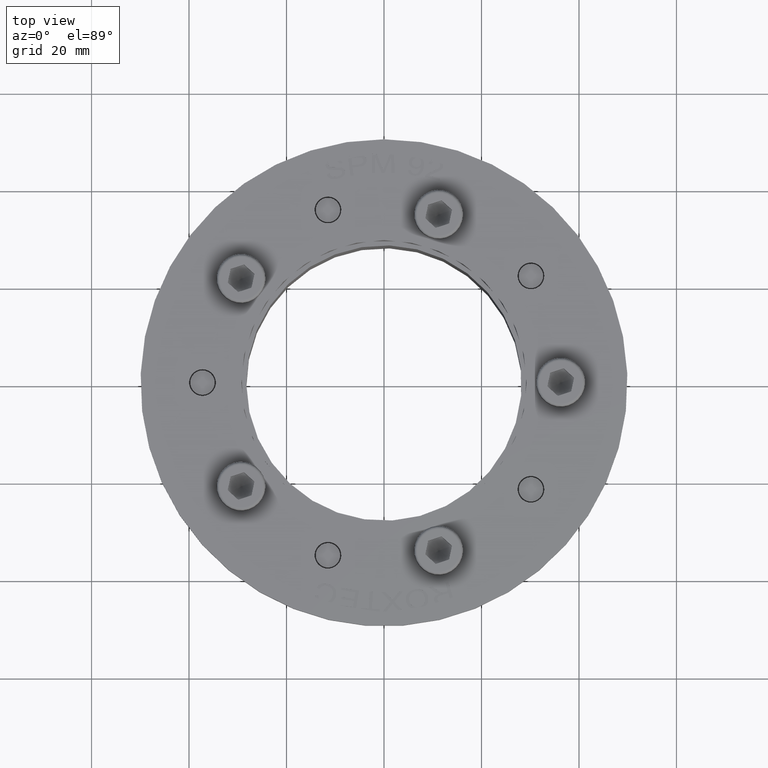
[diagram: clean part render]
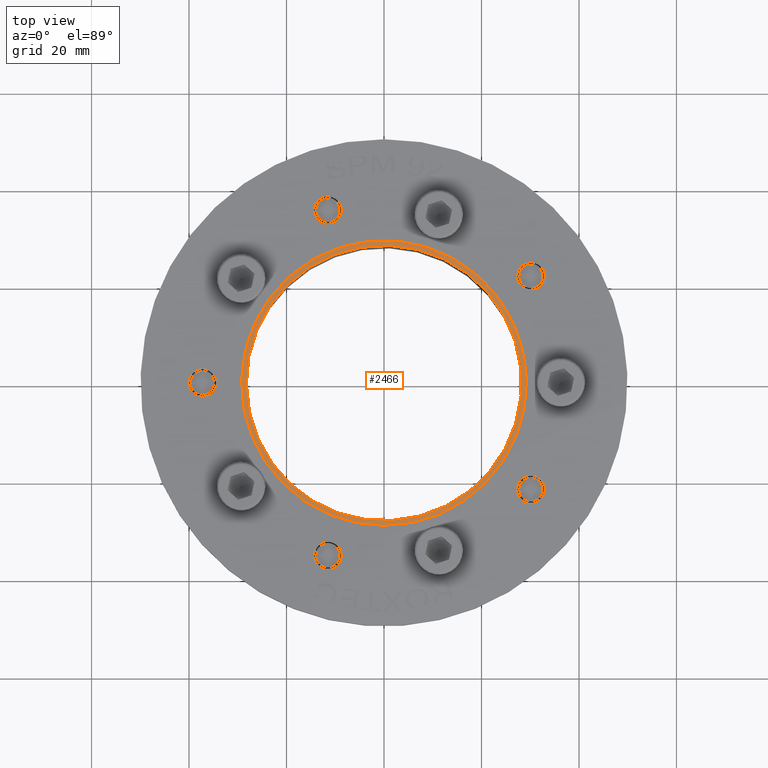
[diagram: same view with one face highlighted and labeled with its STEP entity id]
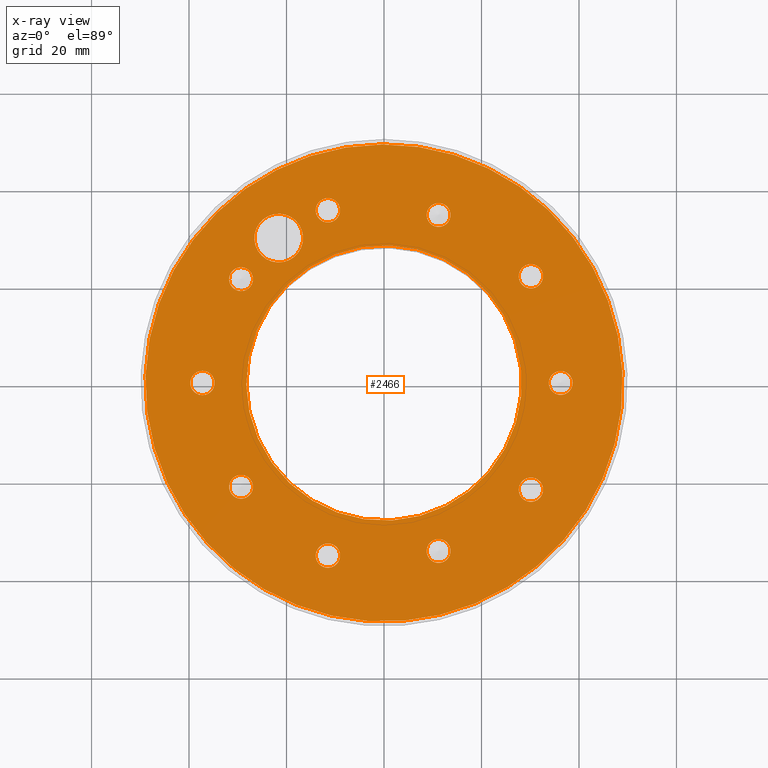
[diagram: x-ray of the same camera — body ghosted, the highlighted face saturated]
A machine part, top view. The second image highlights one B-rep face of the part: STEP entity #2466.
The next image is the same camera in x-ray: the body ghosted, the highlighted face saturated — about 0% of this face is hidden behind the body in this view.
In plain terms, the highlighted planar face has unit normal (0, 0, -1).
Its self-contained STEP definition (entity closure, byte-faithful):
#1428=CARTESIAN_POINT('',(-6.356374543279335,34.951326973846896,35.0));
#1429=VERTEX_POINT('',#1428);
#1430=CARTESIAN_POINT('',(-11.356374543279335,34.951326973846896,35.0));
#1431=DIRECTION('',(0.0,0.0,-1.0));
#1432=DIRECTION('',(-1.0,0.0,0.0));
#1433=AXIS2_PLACEMENT_3D('',#1430,#1431,#1432);
#1434=CIRCLE('',#1433,4.999999999999999);
#1435=EDGE_CURVE('',#1429,#1429,#1434,.T.);
#2113=CARTESIAN_POINT('',(36.199397717931852,9.133241749728908,35.0));
#2114=VERTEX_POINT('',#2113);
#2115=CARTESIAN_POINT('',(35.426855231994487,11.510883040466792,35.0));
#2116=DIRECTION('',(0.0,0.0,-1.0));
#2117=DIRECTION('',(-0.309016994374947,0.951056516295154,0.0));
#2118=AXIS2_PLACEMENT_3D('',#2115,#2116,#2117);
#2119=CIRCLE('',#2118,2.5);
#2120=EDGE_CURVE('',#2114,#2114,#2119,.T.);
#2150=CARTESIAN_POINT('',(19.872458161957262,-31.60534617119799,35.0));
#2151=VERTEX_POINT('',#2150);
#2152=CARTESIAN_POINT('',(21.895000647894634,-30.135883040466808,35.0));
#2153=DIRECTION('',(0.0,0.0,-1.0));
#2154=DIRECTION('',(0.809016994374947,0.587785252292473,0.0));
#2155=AXIS2_PLACEMENT_3D('',#2152,#2153,#2154);
#2156=CIRCLE('',#2155,2.5);
#2157=EDGE_CURVE('',#2151,#2151,#2156,.T.);
#2187=CARTESIAN_POINT('',(-23.917543133832005,-28.666419909735616,35.0));
#2188=VERTEX_POINT('',#2187);
#2189=CARTESIAN_POINT('',(-21.895000647894634,-30.135883040466798,35.0));
#2190=DIRECTION('',(0.0,0.0,-1.0));
#2191=DIRECTION('',(0.809016994374947,-0.587785252292473,0.0));
#2192=AXIS2_PLACEMENT_3D('',#2189,#2190,#2191);
#2193=CIRCLE('',#2192,2.5);
#2194=EDGE_CURVE('',#2188,#2188,#2193,.T.);
#2224=CARTESIAN_POINT('',(-34.654312746057116,13.888524331204682,35.0));
#2225=VERTEX_POINT('',#2224);
#2226=CARTESIAN_POINT('',(-35.42685523199448,11.510883040466798,35.0));
#2227=DIRECTION('',(0.0,0.0,-1.0));
#2228=DIRECTION('',(-0.309016994374948,-0.951056516295154,0.0));
#2229=AXIS2_PLACEMENT_3D('',#2226,#2227,#2228);
#2230=CIRCLE('',#2229,2.5);
#2231=EDGE_CURVE('',#2225,#2225,#2230,.T.);
#2261=CARTESIAN_POINT('',(2.5,37.250000000000007,35.0));
#2262=VERTEX_POINT('',#2261);
#2263=CARTESIAN_POINT('',(-5.551115E-016,37.250000000000007,35.0));
#2264=DIRECTION('',(0.0,0.0,-1.0));
#2265=DIRECTION('',(-1.0,0.0,0.0));
#2266=AXIS2_PLACEMENT_3D('',#2263,#2264,#2265);
#2267=CIRCLE('',#2266,2.5);
#2268=EDGE_CURVE('',#2262,#2262,#2267,.T.);
#2287=CARTESIAN_POINT('',(-5.994646E-015,48.949999999999974,35.000000000000007));
#2288=VERTEX_POINT('',#2287);
#2289=CARTESIAN_POINT('',(0.0,-6.429396E-015,35.0));
#2290=DIRECTION('',(0.0,0.0,1.0));
#2291=DIRECTION('',(0.0,-1.0,0.0));
#2292=AXIS2_PLACEMENT_3D('',#2289,#2290,#2291);
#2293=CIRCLE('',#2292,48.949999999999989);
#2294=EDGE_CURVE('',#2288,#2288,#2293,.T.);
#2307=CARTESIAN_POINT('',(28.25,4.014739E-015,35.0));
#2308=VERTEX_POINT('',#2307);
#2309=CARTESIAN_POINT('',(-5.551115E-016,5.551115E-016,35.0));
#2310=DIRECTION('',(0.0,0.0,-1.0));
#2311=DIRECTION('',(-1.0,0.0,0.0));
#2312=AXIS2_PLACEMENT_3D('',#2309,#2310,#2311);
#2313=CIRCLE('',#2312,28.25);
#2314=EDGE_CURVE('',#2308,#2308,#2313,.T.);
#2330=CARTESIAN_POINT('',(-32.02579871569931,-11.20186604609186,35.0));
#2331=VERTEX_POINT('',#2330);
#2332=CARTESIAN_POINT('',(-34.475798715699312,-11.20186604609186,35.0));
#2333=DIRECTION('',(0.0,0.0,-1.0));
#2334=DIRECTION('',(-1.0,0.0,0.0));
#2335=AXIS2_PLACEMENT_3D('',#2332,#2333,#2334);
#2336=CIRCLE('',#2335,2.45);
#2337=EDGE_CURVE('',#2331,#2331,#2336,.T.);
#2350=CARTESIAN_POINT('',(36.925798715699322,-11.201866046091835,35.0));
#2351=VERTEX_POINT('',#2350);
#2352=CARTESIAN_POINT('',(34.475798715699327,-11.201866046091835,35.0));
#2353=DIRECTION('',(0.0,0.0,-1.0));
#2354=DIRECTION('',(-1.0,0.0,0.0));
#2355=AXIS2_PLACEMENT_3D('',#2352,#2353,#2354);
#2356=CIRCLE('',#2355,2.45);
#2357=EDGE_CURVE('',#2351,#2351,#2356,.T.);
#2370=CARTESIAN_POINT('',(23.757215395602142,29.326866046091851,35.0));
#2371=VERTEX_POINT('',#2370);
#2372=CARTESIAN_POINT('',(21.307215395602142,29.326866046091851,35.0));
#2373=DIRECTION('',(0.0,0.0,-1.0));
#2374=DIRECTION('',(-1.0,0.0,0.0));
#2375=AXIS2_PLACEMENT_3D('',#2372,#2373,#2374);
#2376=CIRCLE('',#2375,2.45);
#2377=EDGE_CURVE('',#2371,#2371,#2376,.T.);
#2390=CARTESIAN_POINT('',(-18.857215395602157,29.326866046091837,35.0));
#2391=VERTEX_POINT('',#2390);
#2392=CARTESIAN_POINT('',(-21.30721539560216,29.326866046091837,35.0));
#2393=DIRECTION('',(0.0,0.0,-1.0));
#2394=DIRECTION('',(-1.0,0.0,0.0));
#2395=AXIS2_PLACEMENT_3D('',#2392,#2393,#2394);
#2396=CIRCLE('',#2395,2.45);
#2397=EDGE_CURVE('',#2391,#2391,#2396,.T.);
#2410=CARTESIAN_POINT('',(2.450000000000014,-36.25,35.0));
#2411=VERTEX_POINT('',#2410);
#2412=CARTESIAN_POINT('',(1.408595E-014,-36.25,35.0));
#2413=DIRECTION('',(0.0,0.0,-1.0));
#2414=DIRECTION('',(-1.0,0.0,0.0));
#2415=AXIS2_PLACEMENT_3D('',#2412,#2413,#2414);
#2416=CIRCLE('',#2415,2.45);
#2417=EDGE_CURVE('',#2411,#2411,#2416,.T.);
#2422=CARTESIAN_POINT('',(-5.551115E-016,5.551115E-016,35.0));
#2423=DIRECTION('',(0.0,0.0,-1.0));
#2424=DIRECTION('',(-1.0,0.0,0.0));
#2425=AXIS2_PLACEMENT_3D('',#2422,#2423,#2424);
#2426=PLANE('',#2425);
#2427=ORIENTED_EDGE('',*,*,#2294,.T.);
#2428=EDGE_LOOP('',(#2427));
#2429=FACE_OUTER_BOUND('',#2428,.T.);
#2430=ORIENTED_EDGE('',*,*,#1435,.T.);
#2431=EDGE_LOOP('',(#2430));
#2432=FACE_BOUND('',#2431,.T.);
#2433=ORIENTED_EDGE('',*,*,#2120,.T.);
#2434=EDGE_LOOP('',(#2433));
#2435=FACE_BOUND('',#2434,.T.);
#2436=ORIENTED_EDGE('',*,*,#2157,.T.);
#2437=EDGE_LOOP('',(#2436));
#2438=FACE_BOUND('',#2437,.T.);
#2439=ORIENTED_EDGE('',*,*,#2194,.T.);
#2440=EDGE_LOOP('',(#2439));
#2441=FACE_BOUND('',#2440,.T.);
#2442=ORIENTED_EDGE('',*,*,#2231,.T.);
#2443=EDGE_LOOP('',(#2442));
#2444=FACE_BOUND('',#2443,.T.);
#2445=ORIENTED_EDGE('',*,*,#2268,.T.);
#2446=EDGE_LOOP('',(#2445));
#2447=FACE_BOUND('',#2446,.T.);
#2448=ORIENTED_EDGE('',*,*,#2314,.T.);
#2449=EDGE_LOOP('',(#2448));
#2450=FACE_BOUND('',#2449,.T.);
#2451=ORIENTED_EDGE('',*,*,#2337,.T.);
#2452=EDGE_LOOP('',(#2451));
#2453=FACE_BOUND('',#2452,.T.);
#2454=ORIENTED_EDGE('',*,*,#2357,.T.);
#2455=EDGE_LOOP('',(#2454));
#2456=FACE_BOUND('',#2455,.T.);
#2457=ORIENTED_EDGE('',*,*,#2377,.T.);
#2458=EDGE_LOOP('',(#2457));
#2459=FACE_BOUND('',#2458,.T.);
#2460=ORIENTED_EDGE('',*,*,#2397,.T.);
#2461=EDGE_LOOP('',(#2460));
#2462=FACE_BOUND('',#2461,.T.);
#2463=ORIENTED_EDGE('',*,*,#2417,.T.);
#2464=EDGE_LOOP('',(#2463));
#2465=FACE_BOUND('',#2464,.T.);
#2466=ADVANCED_FACE('',(#2429,#2432,#2435,#2438,#2441,#2444,#2447,#2450,#2453,#2456,#2459,#2462,#2465),#2426,.F.);